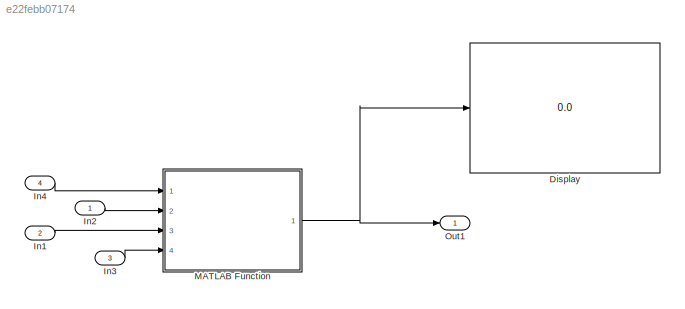
MODEL slx_e22febb07174
KIND model
CONFIG AbsTol = auto
CONFIG EnableMultiTasking = off
CONFIG FixedStep = auto
CONFIG MaxStep = auto
CONFIG MinStep = auto
CONFIG RelTol = 1e-3
CONFIG SampleTimeConstraint = Unconstrained
CONFIG Solver = VariableStepAuto
CONFIG SolverName = VariableStepAuto
CONFIG StartTime = 0.0
CONFIG StopTime = 10.0
BLOCK [Display] Display
  Decimation = 1
  Ports = [1]
BLOCK [Inport] In1
  IconDisplay = Port number
  OutDataTypeStr = double
  Port = 2
  PortDimensions = 1
BLOCK [Inport] In2
  IconDisplay = Port number
  OutDataTypeStr = double
  PortDimensions = 1
BLOCK [Inport] In3
  IconDisplay = Port number
  OutDataTypeStr = double
  Port = 3
  PortDimensions = 1
BLOCK [Inport] In4
  IconDisplay = Port number
  OutDataTypeStr = double
  Port = 4
  PortDimensions = 6
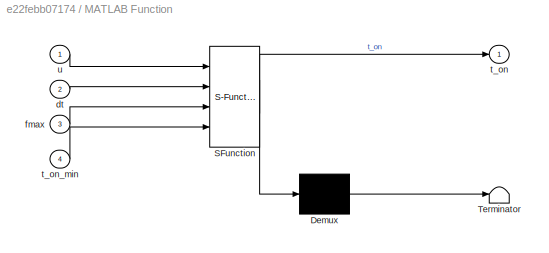
BLOCK [SubSystem] MATLAB Function
  ErrorFcn = Stateflow.Translate.translate
  PermitHierarchicalResolution = ExplicitOnly
  Ports = [4, 1]
  RequestExecContextInheritance = off
  SFBlockType = MATLAB Function
  TreatAsAtomicUnit = on
  Variant = off
BLOCK [Demux] MATLAB Function/ Demux 
  Outputs = 1
  Ports = [1, 1]
BLOCK [S-Function] MATLAB Function/ SFunction 
  EnableBusSupport = on
  FunctionName = sf_sfun
  PortCounts = [4 2]
  Ports = [4, 2]
  SFcnIsStateOwnerBlock = off
  SFunctionDeploymentMode = off
  Tag = Stateflow S-Function bio_matfunc_on_time_calc 6
BLOCK [Terminator] MATLAB Function/ Terminator 
BLOCK [Inport] MATLAB Function/dt
  IconDisplay = Port number
  Port = 2
BLOCK [Inport] MATLAB Function/fmax
  IconDisplay = Port number
  Port = 3
BLOCK [Outport] MATLAB Function/t_on
  IconDisplay = Port number
BLOCK [Inport] MATLAB Function/t_on_min
  IconDisplay = Port number
  Port = 4
BLOCK [Inport] MATLAB Function/u
  IconDisplay = Port number
BLOCK [Outport] Out1
  IconDisplay = Port number
LINE In1:1 -> MATLAB Function:3
LINE In2:1 -> MATLAB Function:2
LINE In3:1 -> MATLAB Function:4
LINE In4:1 -> MATLAB Function:1
NET MATLAB Function:1 -> Display:1, Out1:1
note: NET lines group one-source signal fan-out (src -> all destinations, sorted); 1:1 wires keep LINE
CHART MATLAB Function states=1 transitions=1
  STATE_LABEL 'eML_blk_kernel()'
  STATE_LABEL 'SCRIPT:\nfunction t_on = on_time_calc(u,dt,fmax,t_on_min)\n%#codegen\n\nt_on = zeros(6,1);\nfor i = 1:6\n    t_on(i) = u(i)*dt/fmax;\n    if t_on(i) < t_on_min\n        t_on(i) = 0;\n    elseif t_on(i) > dt\n        t_on(i) = dt;\n    end\nend\n\n'
